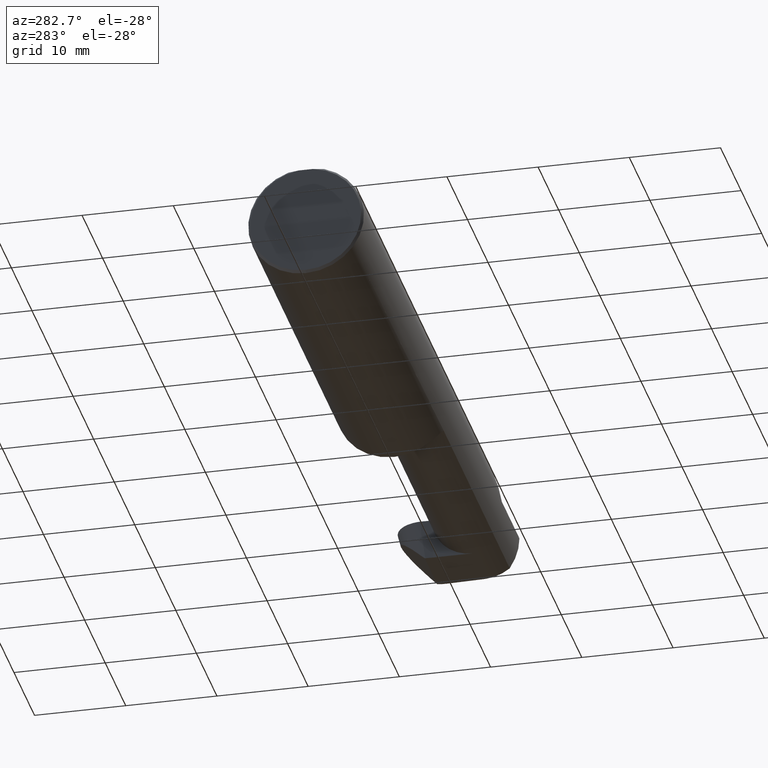
[diagram: clean part render]
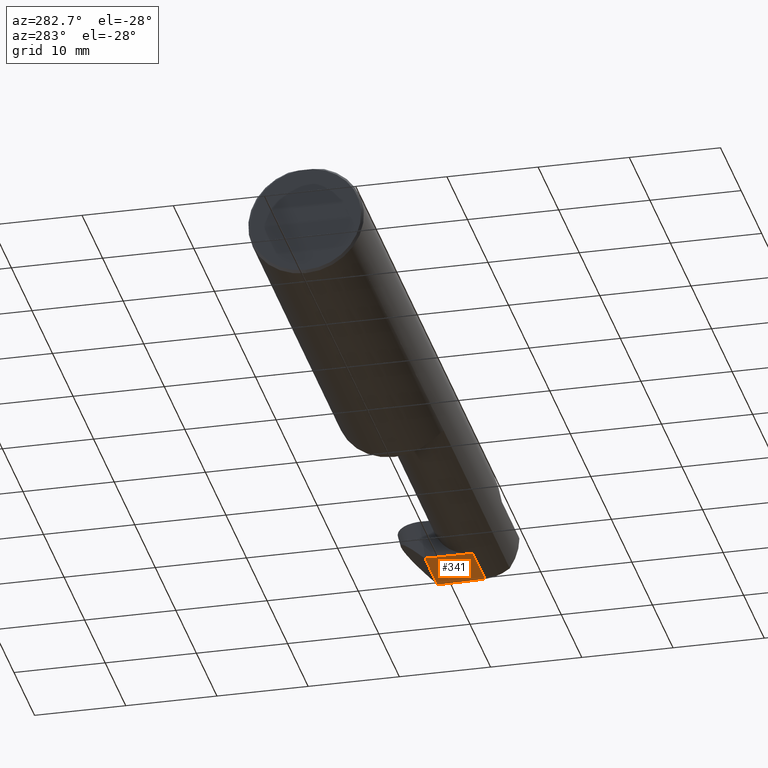
[diagram: same view with one face highlighted and labeled with its STEP entity id]
A machine part, auxiliary view. The second image highlights one B-rep face of the part: STEP entity #341.
In plain terms, the highlighted planar face has unit normal (-0, 0, 1).
Its self-contained STEP definition (entity closure, byte-faithful):
#12 = VERTEX_POINT ( 'NONE', #394 ) ;
#24 = DIRECTION ( 'NONE',  ( -0.03489949670249542502, -0.9993908270190959842, 1.222058880457094641E-16 ) ) ;
#27 = CARTESIAN_POINT ( 'NONE',  ( 2.989756814851906697, -0.08644748268070719111, -0.1750000000000000722 ) ) ;
#59 = EDGE_CURVE ( 'NONE', #315, #535, #156, .T. ) ;
#62 = ORIENTED_EDGE ( 'NONE', *, *, #704, .T. ) ;
#67 = ORIENTED_EDGE ( 'NONE', *, *, #68, .T. ) ;
#68 = EDGE_CURVE ( 'NONE', #439, #12, #523, .T. ) ;
#72 = LINE ( 'NONE', #132, #655 ) ;
#76 = LINE ( 'NONE', #27, #345 ) ;
#106 = CARTESIAN_POINT ( 'NONE',  ( 2.995099234303557623, 0.06653939388036604619, -0.1750000000000001277 ) ) ;
#112 = CARTESIAN_POINT ( 'NONE',  ( 2.995099234303557623, 0.06653939388036604619, -0.1750000000000001277 ) ) ;
#132 = CARTESIAN_POINT ( 'NONE',  ( -0.002039370078740339320, 0.1058243371481696476, -0.1750000000000001277 ) ) ;
#139 = CARTESIAN_POINT ( 'NONE',  ( 2.753585400763539415, -0.1008500000000000091, -0.1750000000000000444 ) ) ;
#142 = DIRECTION ( 'NONE',  ( 1.000000000000000000, -0.000000000000000000, -0.000000000000000000 ) ) ;
#156 = LINE ( 'NONE', #161, #729 ) ;
#161 = CARTESIAN_POINT ( 'NONE',  ( 3.402190948718818664, -0.1008499999999999674, -0.1750000000000000722 ) ) ;
#192 = LINE ( 'NONE', #600, #621 ) ;
#193 = ORIENTED_EDGE ( 'NONE', *, *, #713, .T. ) ;
#209 = VERTEX_POINT ( 'NONE', #112 ) ;
#218 = CARTESIAN_POINT ( 'NONE',  ( 2.752403753671178954, 0.1033802780873585708, -0.1750000000000001277 ) ) ;
#219 = DIRECTION ( 'NONE',  ( -0.0003154085283454350426, 0.9999999502587288980, -1.223178646569383438E-16 ) ) ;
#261 = EDGE_LOOP ( 'NONE', ( #647, #67, #685, #62, #542, #436, #193 ) ) ;
#271 = CARTESIAN_POINT ( 'NONE',  ( 2.994065777569717479, 0.09303079560524193936, -0.1750000000000001277 ) ) ;
#315 = VERTEX_POINT ( 'NONE', #652 ) ;
#341 = ADVANCED_FACE ( 'NONE', ( #426 ), #649, .F. ) ;
#345 = VECTOR ( 'NONE', #24, 39.37007874015748854 ) ;
#353 = EDGE_CURVE ( 'NONE', #532, #439, #192, .T. ) ;
#366 = CARTESIAN_POINT ( 'NONE',  ( 3.402190948718818664, -0.1008499999999999674, -0.1750000000000000722 ) ) ;
#390 = DIRECTION ( 'NONE',  ( -1.000000000000000000, -0.000000000000000000, -0.000000000000000000 ) ) ;
#394 = CARTESIAN_POINT ( 'NONE',  ( 2.753013396079577735, 0.1058243371481696476, -0.1750000000000001277 ) ) ;
#398 = CARTESIAN_POINT ( 'NONE',  ( 2.990641147540828104, 0.1058243371481696476, -0.1750000000000001277 ) ) ;
#426 = FACE_OUTER_BOUND ( 'NONE', #261, .T. ) ;
#430 = DIRECTION ( 'NONE',  ( 0.000000000000000000, -1.000000000000000000, 1.223176342469858617E-16 ) ) ;
#436 = ORIENTED_EDGE ( 'NONE', *, *, #59, .T. ) ;
#439 = VERTEX_POINT ( 'NONE', #499 ) ;
#444 = CARTESIAN_POINT ( 'NONE',  ( 2.753585465288466594, -0.1010545757111813714, -0.1750000000000000722 ) ) ;
#450 = CARTESIAN_POINT ( 'NONE',  ( 2.995563461189592047, 0.07983311256960280711, -0.1750000000000001277 ) ) ;
#499 = CARTESIAN_POINT ( 'NONE',  ( 2.752403753671178954, 0.1033802780873585708, -0.1750000000000001277 ) ) ;
#505 = VECTOR ( 'NONE', #219, 39.37007874015748854 ) ;
#523 =( BOUNDED_CURVE ( )  B_SPLINE_CURVE ( 3, ( #218, #555, #676, #623 ),
 .UNSPECIFIED., .F., .T. ) 
 B_SPLINE_CURVE_WITH_KNOTS ( ( 4, 4 ),
 ( 4.955210089620395664, 4.975001206325426750 ),
 .UNSPECIFIED. ) 
 CURVE ( )  GEOMETRIC_REPRESENTATION_ITEM ( )  RATIONAL_B_SPLINE_CURVE ( ( 1.000000000000000000, 0.9999673595746501054, 0.9999673595746501054, 1.000000000000000000 ) ) 
 REPRESENTATION_ITEM ( '' )  );
#532 = VERTEX_POINT ( 'NONE', #543 ) ;
#535 = VERTEX_POINT ( 'NONE', #139 ) ;
#540 = CARTESIAN_POINT ( 'NONE',  ( 2.990641147540828104, 0.1058243371481696476, -0.1750000000000001277 ) ) ;
#541 = DIRECTION ( 'NONE',  ( -0.03489949670249486297, 0.9993908270190959842, -1.222058880457094641E-16 ) ) ;
#542 = ORIENTED_EDGE ( 'NONE', *, *, #560, .T. ) ;
#543 = CARTESIAN_POINT ( 'NONE',  ( 2.753531167726741113, 0.07109536363756174815, -0.1750000000000001277 ) ) ;
#550 = EDGE_CURVE ( 'NONE', #12, #587, #72, .T. ) ;
#555 = CARTESIAN_POINT ( 'NONE',  ( 2.752599177285632415, 0.1041970330334761191, -0.1750000000000001277 ) ) ;
#560 = EDGE_CURVE ( 'NONE', #209, #315, #76, .T. ) ;
#587 = VERTEX_POINT ( 'NONE', #540 ) ;
#595 = DIRECTION ( 'NONE',  ( -0.000000000000000000, 1.223176342469858617E-16, 1.000000000000000000 ) ) ;
#600 = CARTESIAN_POINT ( 'NONE',  ( 2.760318370161228163, -0.1232646843588793700, -0.1750000000000000722 ) ) ;
#621 = VECTOR ( 'NONE', #541, 39.37007874015748854 ) ;
#623 = CARTESIAN_POINT ( 'NONE',  ( 2.753013396079577735, 0.1058243371481696476, -0.1750000000000001277 ) ) ;
#624 = LINE ( 'NONE', #444, #505 ) ;
#647 = ORIENTED_EDGE ( 'NONE', *, *, #353, .T. ) ;
#649 = PLANE ( 'NONE',  #700 ) ;
#652 = CARTESIAN_POINT ( 'NONE',  ( 2.989253867864499092, -0.1008499999999999674, -0.1750000000000000722 ) ) ;
#655 = VECTOR ( 'NONE', #142, 39.37007874015748143 ) ;
#676 = CARTESIAN_POINT ( 'NONE',  ( 2.752802398054977839, 0.1050117459796568314, -0.1750000000000001277 ) ) ;
#685 = ORIENTED_EDGE ( 'NONE', *, *, #550, .T. ) ;
#700 = AXIS2_PLACEMENT_3D ( 'NONE', #366, #595, #430 ) ;
#704 = EDGE_CURVE ( 'NONE', #587, #209, #725, .T. ) ;
#713 = EDGE_CURVE ( 'NONE', #535, #532, #624, .T. ) ;
#725 =( BOUNDED_CURVE ( )  B_SPLINE_CURVE ( 3, ( #398, #271, #450, #106 ),
 .UNSPECIFIED., .F., .T. ) 
 B_SPLINE_CURVE_WITH_KNOTS ( ( 4, 4 ),
 ( 4.339337998362998050, 4.645220385064936508 ),
 .UNSPECIFIED. ) 
 CURVE ( )  GEOMETRIC_REPRESENTATION_ITEM ( )  RATIONAL_B_SPLINE_CURVE ( ( 1.000000000000000000, 0.9922181835937360361, 0.9922181835937360361, 1.000000000000000000 ) ) 
 REPRESENTATION_ITEM ( '' )  );
#729 = VECTOR ( 'NONE', #390, 39.37007874015748143 ) ;